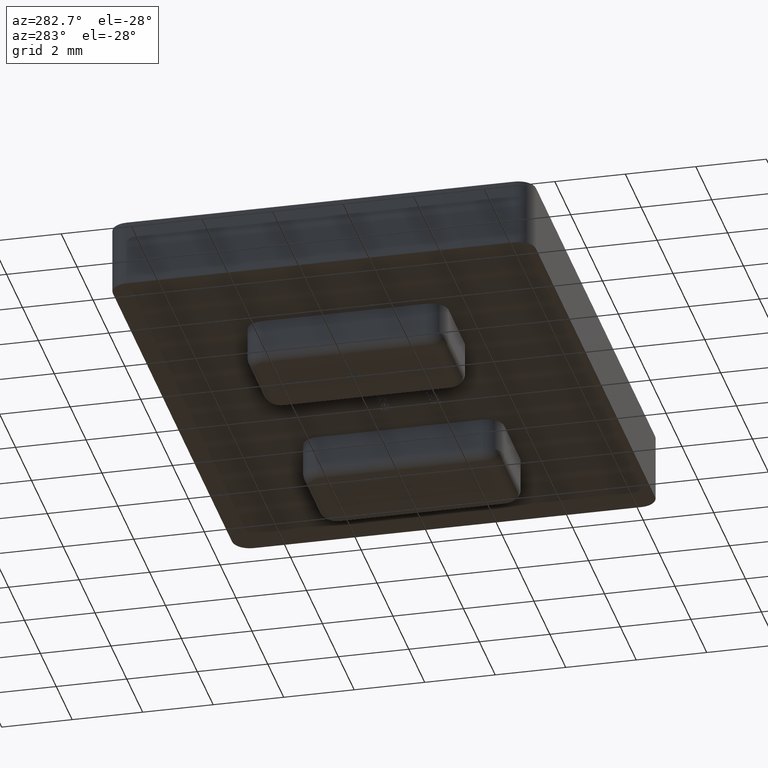
[diagram: clean part render]
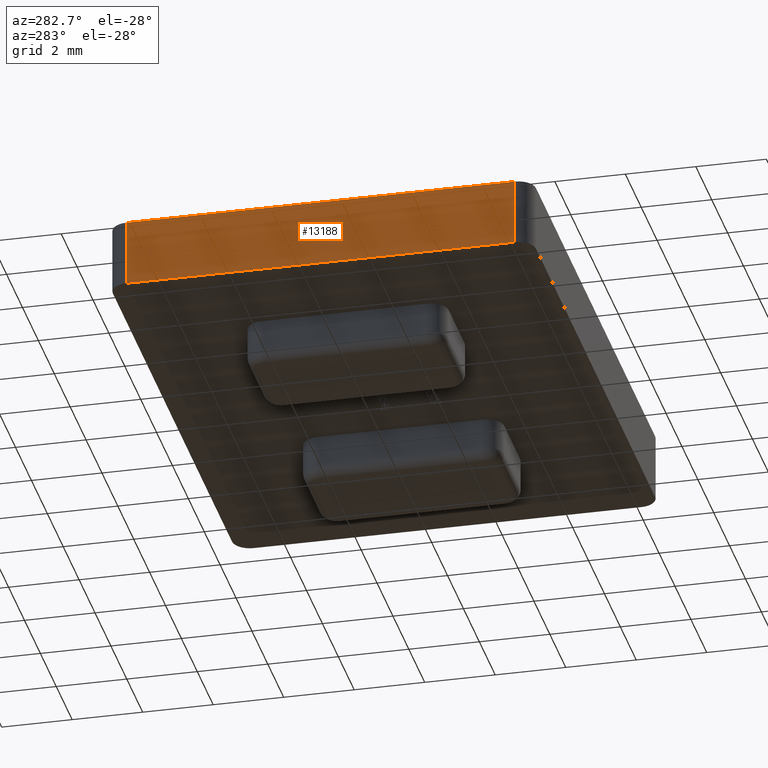
[diagram: same view with one face highlighted and labeled with its STEP entity id]
A machine part, auxiliary view. The second image highlights one B-rep face of the part: STEP entity #13188.
In plain terms, the highlighted planar face has unit normal (1, 0, -0).
Its self-contained STEP definition (entity closure, byte-faithful):
#71 = LINE ( 'NONE', #13548, #13039 ) ;
#701 = EDGE_CURVE ( 'NONE', #9664, #740, #71, .T. ) ;
#740 = VERTEX_POINT ( 'NONE', #5055 ) ;
#928 = CARTESIAN_POINT ( 'NONE',  ( -7.999999999999998200, 6.000000000000000000, 0.0000000000000000000 ) ) ;
#1241 = PLANE ( 'NONE',  #5466 ) ;
#1391 = EDGE_CURVE ( 'NONE', #9664, #12369, #8792, .T. ) ;
#2143 = LINE ( 'NONE', #10423, #13293 ) ;
#2265 = DIRECTION ( 'NONE',  ( 1.000000000000000000, 0.0000000000000000000, -0.0000000000000000000 ) ) ;
#2286 = VERTEX_POINT ( 'NONE', #11069 ) ;
#3403 = DIRECTION ( 'NONE',  ( 0.0000000000000000000, 0.0000000000000000000, -1.000000000000000000 ) ) ;
#5055 = CARTESIAN_POINT ( 'NONE',  ( -7.999999999999998200, -5.500000000000000000, 1.899999999999999900 ) ) ;
#5466 = AXIS2_PLACEMENT_3D ( 'NONE', #9688, #2265, #10896 ) ;
#5482 = EDGE_CURVE ( 'NONE', #12369, #2286, #7058, .T. ) ;
#6317 = ORIENTED_EDGE ( 'NONE', *, *, #1391, .T. ) ;
#6597 = VECTOR ( 'NONE', #3403, 1000.000000000000000 ) ;
#6921 = CARTESIAN_POINT ( 'NONE',  ( -7.999999999999998200, 5.500000000000000900, 1.899999999999999900 ) ) ;
#7043 = DIRECTION ( 'NONE',  ( 0.0000000000000000000, -1.000000000000000000, 0.0000000000000000000 ) ) ;
#7058 = LINE ( 'NONE', #928, #10134 ) ;
#8410 = DIRECTION ( 'NONE',  ( 0.0000000000000000000, -0.0000000000000000000, 1.000000000000000000 ) ) ;
#8792 = LINE ( 'NONE', #13135, #6597 ) ;
#9664 = VERTEX_POINT ( 'NONE', #6921 ) ;
#9688 = CARTESIAN_POINT ( 'NONE',  ( -7.999999999999998200, 6.000000000000000000, 1.899999999999999900 ) ) ;
#10134 = VECTOR ( 'NONE', #12939, 1000.000000000000000 ) ;
#10391 = EDGE_CURVE ( 'NONE', #2286, #740, #2143, .T. ) ;
#10423 = CARTESIAN_POINT ( 'NONE',  ( -7.999999999999998200, -5.500000000000000000, 1.899999999999999900 ) ) ;
#10631 = ORIENTED_EDGE ( 'NONE', *, *, #5482, .T. ) ;
#10896 = DIRECTION ( 'NONE',  ( -0.0000000000000000000, 0.0000000000000000000, -1.000000000000000000 ) ) ;
#10898 = EDGE_LOOP ( 'NONE', ( #10631, #12777, #11442, #6317 ) ) ;
#11069 = CARTESIAN_POINT ( 'NONE',  ( -7.999999999999998200, -5.500000000000000000, 0.0000000000000000000 ) ) ;
#11442 = ORIENTED_EDGE ( 'NONE', *, *, #701, .F. ) ;
#11587 = CARTESIAN_POINT ( 'NONE',  ( -7.999999999999998200, 5.500000000000000900, 0.0000000000000000000 ) ) ;
#12369 = VERTEX_POINT ( 'NONE', #11587 ) ;
#12777 = ORIENTED_EDGE ( 'NONE', *, *, #10391, .T. ) ;
#12939 = DIRECTION ( 'NONE',  ( 0.0000000000000000000, -1.000000000000000000, 0.0000000000000000000 ) ) ;
#13039 = VECTOR ( 'NONE', #7043, 1000.000000000000000 ) ;
#13135 = CARTESIAN_POINT ( 'NONE',  ( -7.999999999999998200, 5.500000000000000900, 1.899999999999999900 ) ) ;
#13188 = ADVANCED_FACE ( 'NONE', ( #13249 ), #1241, .F. ) ;
#13249 = FACE_OUTER_BOUND ( 'NONE', #10898, .T. ) ;
#13293 = VECTOR ( 'NONE', #8410, 1000.000000000000000 ) ;
#13548 = CARTESIAN_POINT ( 'NONE',  ( -7.999999999999998200, 6.000000000000000000, 1.899999999999999900 ) ) ;